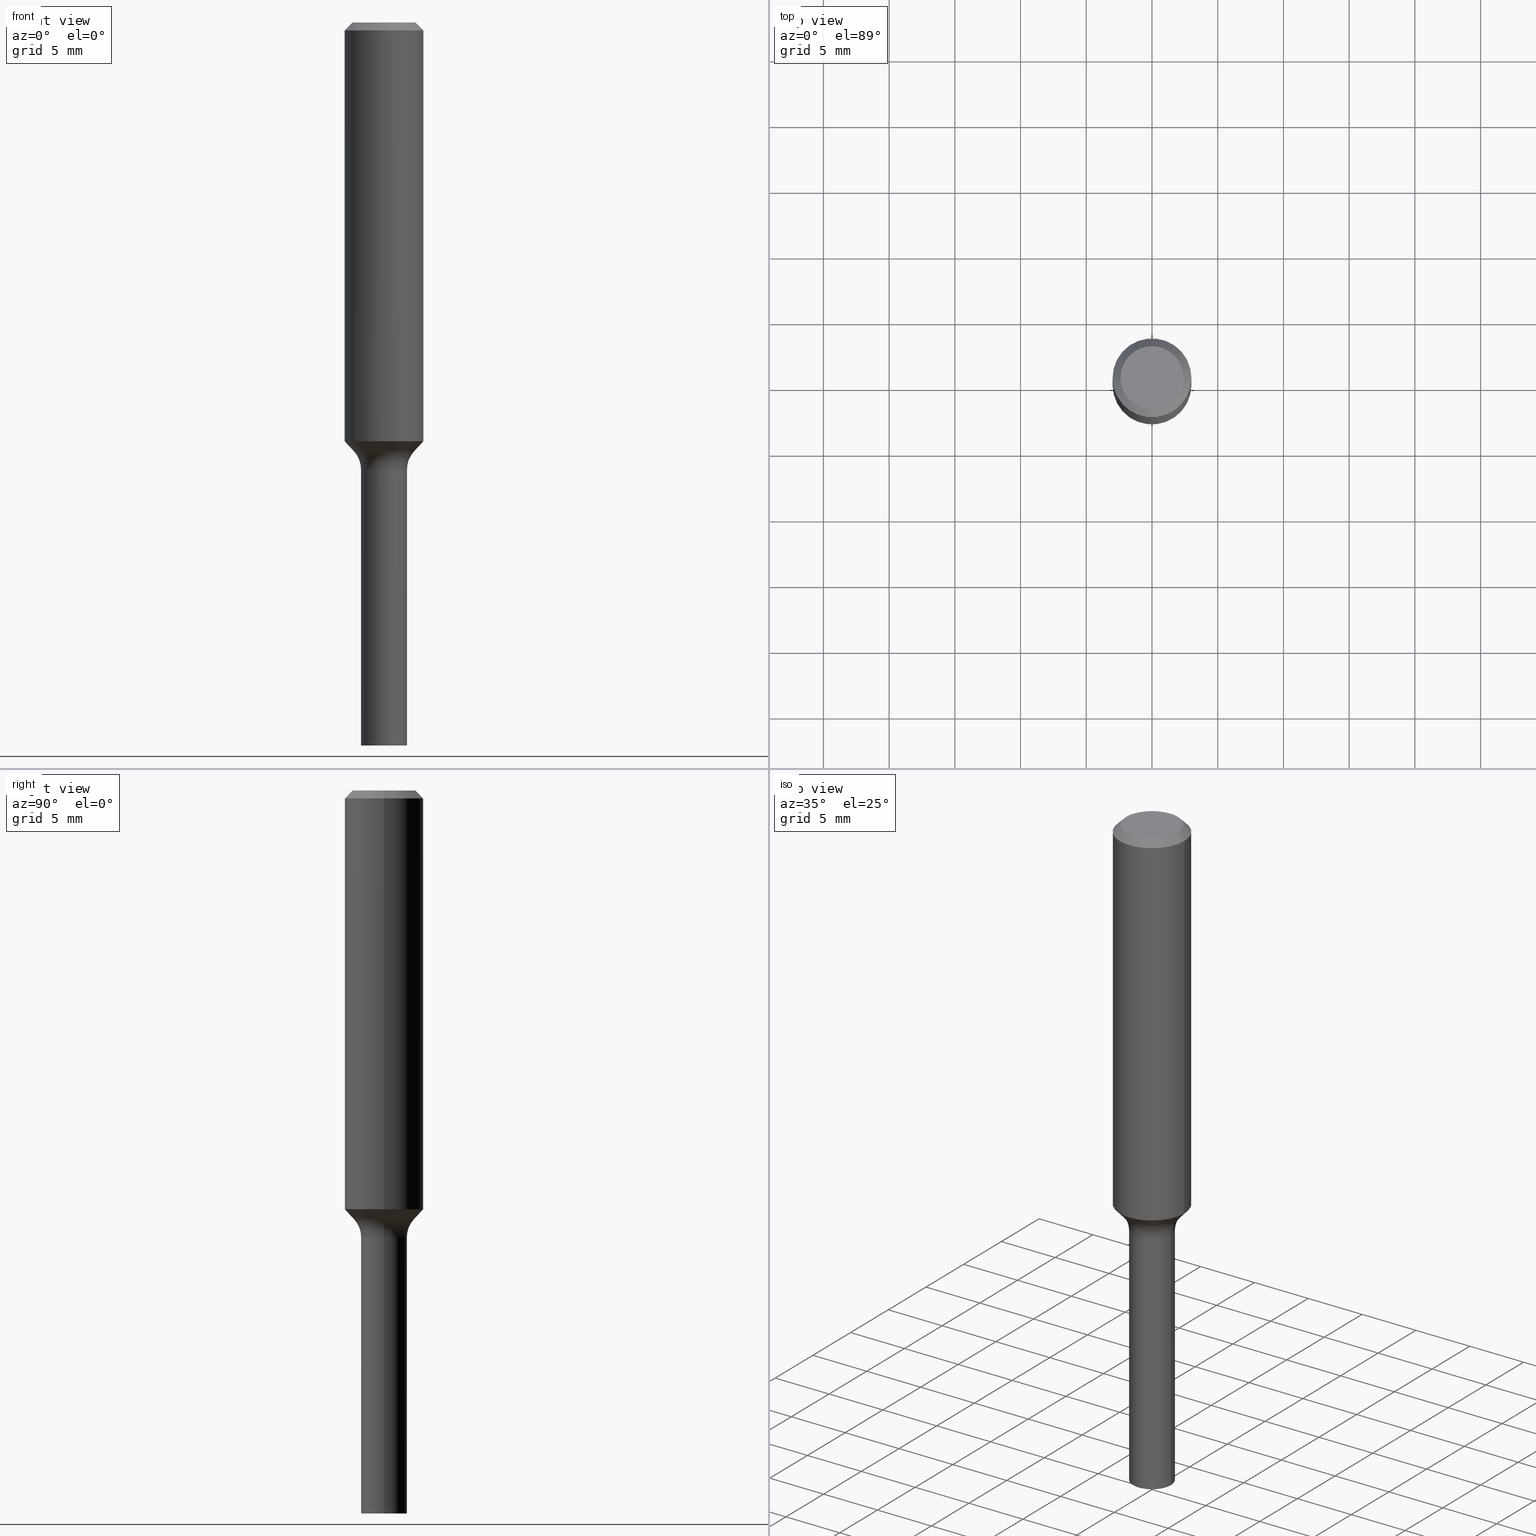
[diagram: canonical four-view strip — front | top / right | iso, engineering-drawing reading convention]
A machine part, canonical four-view strip (front | top / right | iso — engineering-drawing reading convention). The complete STEP part file that produces these views, byte-faithful:
ISO-10303-21;
HEADER;
FILE_DESCRIPTION (( 'STEP AP203' ),
    '1' );
FILE_NAME ('67710.STEP',
    '2025-04-01T15:29:29',
    ( '' ),
    ( '' ),
    'SwSTEP 2.0',
    'SolidWorks 2024',
    '' );
FILE_SCHEMA (( 'CONFIG_CONTROL_DESIGN' ));
ENDSEC;

DATA;
#1 = DIRECTION ( 'NONE',  ( -2.445468806185136597E-29, 3.491481338843145583E-15, 1.000000000000000000 ) ) ;
#2 = VECTOR ( 'NONE', #136, 39.37007874015748143 ) ;
#3 = DIRECTION ( 'NONE',  ( 1.000000000000000000, -6.982962677686265922E-15, 0.000000000000000000 ) ) ;
#4 = CC_DESIGN_APPROVAL ( #383, ( #48 ) ) ;
#5 = DIRECTION ( 'NONE',  ( 0.6819983600624988096, -2.208861293262478564E-15, 0.7313537016191701268 ) ) ;
#6 = EDGE_CURVE ( 'NONE', #184, #417, #226, .T. ) ;
#7 = DIRECTION ( 'NONE',  ( -2.445468806185136597E-29, 3.491481338843145583E-15, 1.000000000000000000 ) ) ;
#8 = DATE_AND_TIME ( #239, #203 ) ;
#9 = DIRECTION ( 'NONE',  ( -2.445468806185136597E-29, 3.491481338843145583E-15, 1.000000000000000000 ) ) ;
#10 = PLANE ( 'NONE',  #185 ) ;
#11 = ORIENTED_EDGE ( 'NONE', *, *, #454, .F. ) ;
#12 = CARTESIAN_POINT ( 'NONE',  ( 0.1181000000000001493, -5.203447587460667215E-15, -1.254126621417589904 ) ) ;
#13 = CARTESIAN_POINT ( 'NONE',  ( 3.273015450198186344E-29, -4.672998623907665346E-15, -1.338399999999999812 ) ) ;
#14 =( NAMED_UNIT ( * ) PLANE_ANGLE_UNIT ( ) SI_UNIT ( $, .RADIAN. ) );
#15 = LINE ( 'NONE', #282, #436 ) ;
#16 = LINE ( 'NONE', #292, #493 ) ;
#17 = EDGE_CURVE ( 'NONE', #376, #433, #430, .T. ) ;
#18 = CIRCLE ( 'NONE', #78, 0.09039170387046631394 ) ;
#19 = CYLINDRICAL_SURFACE ( 'NONE', #340, 0.1181000000000000660 ) ;
#20 = DIRECTION ( 'NONE',  ( -2.445468806185136877E-29, 3.491481338843145188E-15, 1.000000000000000000 ) ) ;
#21 = ORIENTED_EDGE ( 'NONE', *, *, #397, .T. ) ;
#22 = DIRECTION ( 'NONE',  ( -2.445468806185136597E-29, 3.491481338843145583E-15, 1.000000000000000000 ) ) ;
#23 = ORIENTED_EDGE ( 'NONE', *, *, #266, .F. ) ;
#24 = DIRECTION ( 'NONE',  ( -2.445468806185136597E-29, 3.491481338843145583E-15, 1.000000000000000000 ) ) ;
#25 = EDGE_LOOP ( 'NONE', ( #191, #269, #408, #87 ) ) ;
#26 = CIRCLE ( 'NONE', #502, 0.06889999999999996128 ) ;
#27 = APPROVAL_PERSON_ORGANIZATION ( #70, #460, #75 ) ;
#28 = ADVANCED_FACE ( 'NONE', ( #487 ), #326, .T. ) ;
#29 = DIRECTION ( 'NONE',  ( -2.445468806185136597E-29, 3.491481338843145583E-15, 1.000000000000000000 ) ) ;
#30 = ORIENTED_EDGE ( 'NONE', *, *, #120, .F. ) ;
#31 = CC_DESIGN_PERSON_AND_ORGANIZATION_ASSIGNMENT ( #395, #113, ( #231 ) ) ;
#32 = ORIENTED_EDGE ( 'NONE', *, *, #273, .T. ) ;
#33 = SHAPE_DEFINITION_REPRESENTATION ( #119, #58 ) ;
#34 = DIRECTION ( 'NONE',  ( 1.000000000000000000, -6.982962677686267499E-15, 4.875432709231658792E-29 ) ) ;
#35 = EDGE_CURVE ( 'NONE', #100, #104, #236, .T. ) ;
#36 = AXIS2_PLACEMENT_3D ( 'NONE', #461, #497, #468 ) ;
#37 = FACE_OUTER_BOUND ( 'NONE', #365, .T. ) ;
#38 = DIRECTION ( 'NONE',  ( 7.105427357601001859E-15, 1.000000000000000000, -3.491481338843145583E-15 ) ) ;
#39 = CIRCLE ( 'NONE', #101, 0.06890000000000000291 ) ;
#40 = COORDINATED_UNIVERSAL_TIME_OFFSET ( 5, 0, .BEHIND. ) ;
#41 = PERSON_AND_ORGANIZATION ( #166, #393 ) ;
#42 = ORIENTED_EDGE ( 'NONE', *, *, #118, .T. ) ;
#43 = DIRECTION ( 'NONE',  ( -1.000000000000000000, 6.982962677686265922E-15, -4.876176775795935793E-29 ) ) ;
#44 = EDGE_CURVE ( 'NONE', #400, #362, #288, .T. ) ;
#45 = CARTESIAN_POINT ( 'NONE',  ( -0.06889999999999996128, -4.856417707030973435E-15, -1.338399999999999812 ) ) ;
#46 = COORDINATED_UNIVERSAL_TIME_OFFSET ( 5, 0, .BEHIND. ) ;
#47 = DIRECTION ( 'NONE',  ( 1.000000000000000000, -6.982962677686273021E-15, 0.000000000000000000 ) ) ;
#48 = PRODUCT_DEFINITION_FORMATION_WITH_SPECIFIED_SOURCE ( 'ANY', '', #244, .NOT_KNOWN. ) ;
#49 = ORIENTED_EDGE ( 'NONE', *, *, #82, .T. ) ;
#50 = FACE_OUTER_BOUND ( 'NONE', #305, .T. ) ;
#51 = CARTESIAN_POINT ( 'NONE',  ( 3.066927531683072292E-29, -4.378759695225917375E-15, -1.254126621417589904 ) ) ;
#52 = LINE ( 'NONE', #422, #216 ) ;
#53 = DIRECTION ( 'NONE',  ( -2.445468806185136597E-29, 3.491481338843145583E-15, 1.000000000000000000 ) ) ;
#54 = DIRECTION ( 'NONE',  ( 2.438088387897960049E-29, -3.491481338843145188E-15, -1.000000000000000000 ) ) ;
#55 = AXIS2_PLACEMENT_3D ( 'NONE', #391, #233, #276 ) ;
#56 = AXIS2_PLACEMENT_3D ( 'NONE', #483, #321, #255 ) ;
#57 = CARTESIAN_POINT ( 'NONE',  ( -0.06890000000000001679, -4.856417707030972646E-15, -1.723899999999999988 ) ) ;
#58 = ADVANCED_BREP_SHAPE_REPRESENTATION ( '67710', ( #334, #157, #73 ), #480 ) ;
#59 = CARTESIAN_POINT ( 'NONE',  ( 0.1180999999999999966, -9.071566814582237199E-16, -0.02362000000000015129 ) ) ;
#60 = ORIENTED_EDGE ( 'NONE', *, *, #35, .T. ) ;
#61 = DIRECTION ( 'NONE',  ( 1.000000000000000000, -6.982962677686267499E-15, 0.000000000000000000 ) ) ;
#62 = EDGE_LOOP ( 'NONE', ( #336, #341, #387, #265 ) ) ;
#63 = EDGE_CURVE ( 'NONE', #100, #188, #494, .T. ) ;
#64 = EDGE_LOOP ( 'NONE', ( #424, #242, #211, #49 ) ) ;
#65 = CIRCLE ( 'NONE', #224, 0.06890000000000000291 ) ;
#66 = ORIENTED_EDGE ( 'NONE', *, *, #170, .F. ) ;
#67 = CALENDAR_DATE ( 2025, 1, 4 ) ;
#68 = EDGE_CURVE ( 'NONE', #362, #396, #317, .T. ) ;
#69 = EDGE_LOOP ( 'NONE', ( #435, #167, #85, #23 ) ) ;
#70 = PERSON_AND_ORGANIZATION ( #166, #393 ) ;
#71 = CARTESIAN_POINT ( 'NONE',  ( 5.776197320209329284E-31, -8.246878922347561759E-17, -0.02362000000000015129 ) ) ;
#72 = CONICAL_SURFACE ( 'NONE', #360, 0.1180999999999999966, 0.7853981633974460586 ) ;
#73 = AXIS2_PLACEMENT_3D ( 'NONE', #205, #92, #106 ) ;
#74 = ORIENTED_EDGE ( 'NONE', *, *, #411, .F. ) ;
#75 = APPROVAL_ROLE ( '' ) ;
#76 = ADVANCED_FACE ( 'NONE', ( #114 ), #512, .T. ) ;
#77 = APPROVAL ( #79, 'UNSPECIFIED' ) ;
#78 = AXIS2_PLACEMENT_3D ( 'NONE', #293, #22, #61 ) ;
#79 = APPROVAL_STATUS ( 'not_yet_approved' ) ;
#80 = EDGE_LOOP ( 'NONE', ( #30, #343, #297, #507 ) ) ;
#81 = CARTESIAN_POINT ( 'NONE',  ( 0.06890000000000000291, -6.500090808524281979E-15, -1.723899999999999988 ) ) ;
#82 = EDGE_CURVE ( 'NONE', #417, #184, #194, .T. ) ;
#83 = DIRECTION ( 'NONE',  ( 2.438088387897960049E-29, -3.491481338843145188E-15, -1.000000000000000000 ) ) ;
#84 = DIRECTION ( 'NONE',  ( 1.000000000000000000, -6.982962677686265922E-15, 4.876176775795935793E-29 ) ) ;
#85 = ORIENTED_EDGE ( 'NONE', *, *, #420, .F. ) ;
#86 = CARTESIAN_POINT ( 'NONE',  ( 3.772893820736570314E-46, -5.386692455541008845E-32, -1.542810037565835988E-17 ) ) ;
#87 = ORIENTED_EDGE ( 'NONE', *, *, #118, .F. ) ;
#88 = DIRECTION ( 'NONE',  ( 1.000000000000000000, -6.982962677686265922E-15, 0.000000000000000000 ) ) ;
#89 = AXIS2_PLACEMENT_3D ( 'NONE', #432, #29, #300 ) ;
#90 = DIRECTION ( 'NONE',  ( 1.000000000000000000, -6.982962677686273810E-15, 0.000000000000000000 ) ) ;
#91 = CC_DESIGN_APPROVAL ( #460, ( #231 ) ) ;
#92 = DIRECTION ( 'NONE',  ( 0.000000000000000000, 0.000000000000000000, 1.000000000000000000 ) ) ;
#93 = CARTESIAN_POINT ( 'NONE',  ( 0.1180999999999999966, -8.926936027602933910E-16, -0.02362000000000015129 ) ) ;
#94 = LINE ( 'NONE', #210, #141 ) ;
#95 = CC_DESIGN_PERSON_AND_ORGANIZATION_ASSIGNMENT ( #41, #423, ( #48 ) ) ;
#96 = CARTESIAN_POINT ( 'NONE',  ( 0.09039170387046627231, -5.113705754625212970E-15, -1.283840131195000067 ) ) ;
#97 = DIRECTION ( 'NONE',  ( -2.445468806185136597E-29, 3.491481338843145583E-15, 1.000000000000000000 ) ) ;
#98 = CARTESIAN_POINT ( 'NONE',  ( 4.216966409385649156E-29, -6.020710420701119744E-15, -1.724399999999999711 ) ) ;
#99 = FACE_OUTER_BOUND ( 'NONE', #64, .T. ) ;
#100 = VERTEX_POINT ( 'NONE', #278 ) ;
#101 = AXIS2_PLACEMENT_3D ( 'NONE', #328, #335, #503 ) ;
#102 = DIRECTION ( 'NONE',  ( -2.445468806185136597E-29, 3.491481338843145583E-15, 1.000000000000000000 ) ) ;
#103 = ADVANCED_FACE ( 'NONE', ( #445 ), #394, .F. ) ;
#104 = VERTEX_POINT ( 'NONE', #45 ) ;
#105 = EDGE_LOOP ( 'NONE', ( #137, #268, #42, #427 ) ) ;
#106 = DIRECTION ( 'NONE',  ( 1.000000000000000000, 0.000000000000000000, 0.000000000000000000 ) ) ;
#107 = CARTESIAN_POINT ( 'NONE',  ( 4.216966409385649156E-29, -6.020710420701119744E-15, -1.724399999999999711 ) ) ;
#108 = ORIENTED_EDGE ( 'NONE', *, *, #471, .T. ) ;
#109 = AXIS2_PLACEMENT_3D ( 'NONE', #245, #447, #3 ) ;
#110 = ADVANCED_FACE ( 'NONE', ( #37 ), #202, .T. ) ;
#111 = DIRECTION ( 'NONE',  ( -1.000000000000000000, 6.982962677686266711E-15, 0.000000000000000000 ) ) ;
#112 = ORIENTED_EDGE ( 'NONE', *, *, #464, .F. ) ;
#113 = PERSON_AND_ORGANIZATION_ROLE ( 'classification_officer' ) ;
#114 = FACE_OUTER_BOUND ( 'NONE', #69, .T. ) ;
#115 = EDGE_LOOP ( 'NONE', ( #390, #144 ) ) ;
#116 = APPROVAL_STATUS ( 'not_yet_approved' ) ;
#117 = AXIS2_PLACEMENT_3D ( 'NONE', #51, #370, #241 ) ;
#118 = EDGE_CURVE ( 'NONE', #215, #421, #52, .T. ) ;
#119 = PRODUCT_DEFINITION_SHAPE ( 'NONE', 'NONE',  #209 ) ;
#120 = EDGE_CURVE ( 'NONE', #400, #505, #221, .T. ) ;
#121 = ORIENTED_EDGE ( 'NONE', *, *, #197, .F. ) ;
#122 = CIRCLE ( 'NONE', #418, 0.06890000000000000291 ) ;
#123 = DATE_AND_TIME ( #279, #162 ) ;
#124 = CARTESIAN_POINT ( 'NONE',  ( 0.06890000000000000291, -6.501836549193703482E-15, -1.724399999999999711 ) ) ;
#125 = DIRECTION ( 'NONE',  ( -2.445468806185136597E-29, 3.491481338843145583E-15, 1.000000000000000000 ) ) ;
#126 = CARTESIAN_POINT ( 'NONE',  ( 0.06840000000000000246, -6.498345067854860475E-15, -1.724399999999999711 ) ) ;
#127 = ORIENTED_EDGE ( 'NONE', *, *, #420, .T. ) ;
#128 = DIRECTION ( 'NONE',  ( -2.445468806185136597E-29, 3.491481338843145583E-15, 1.000000000000000000 ) ) ;
#129 = DIRECTION ( 'NONE',  ( -2.445468806185136877E-29, 3.491481338843145188E-15, 1.000000000000000000 ) ) ;
#130 = AXIS2_PLACEMENT_3D ( 'NONE', #200, #323, #84 ) ;
#131 = FACE_OUTER_BOUND ( 'NONE', #62, .T. ) ;
#132 = VECTOR ( 'NONE', #477, 39.37007874015748143 ) ;
#133 = CARTESIAN_POINT ( 'NONE',  ( -0.06890000000000007230, -5.531146475762410202E-15, -1.724399999999999711 ) ) ;
#134 = CARTESIAN_POINT ( 'NONE',  ( 0.09447999999999998066, -7.704367267948738690E-16, -3.085620075131172158E-17 ) ) ;
#135 = CARTESIAN_POINT ( 'NONE',  ( 3.139590992966006013E-29, -4.482503860125278864E-15, -1.283840131195000067 ) ) ;
#136 = DIRECTION ( 'NONE',  ( -2.445468806185136877E-29, 3.491481338843145188E-15, 1.000000000000000000 ) ) ;
#137 = ORIENTED_EDGE ( 'NONE', *, *, #156, .F. ) ;
#138 = FACE_OUTER_BOUND ( 'NONE', #25, .T. ) ;
#139 = PERSON_AND_ORGANIZATION ( #166, #393 ) ;
#140 = EDGE_CURVE ( 'NONE', #376, #184, #257, .T. ) ;
#141 = VECTOR ( 'NONE', #252, 39.37007874015748143 ) ;
#142 = APPROVAL_PERSON_ORGANIZATION ( #143, #77, #358 ) ;
#143 = PERSON_AND_ORGANIZATION ( #166, #393 ) ;
#144 = ORIENTED_EDGE ( 'NONE', *, *, #254, .T. ) ;
#145 = ORIENTED_EDGE ( 'NONE', *, *, #399, .T. ) ;
#146 = AXIS2_PLACEMENT_3D ( 'NONE', #485, #164, #270 ) ;
#147 = CIRCLE ( 'NONE', #509, 0.06840000000000000246 ) ;
#148 = CC_DESIGN_PERSON_AND_ORGANIZATION_ASSIGNMENT ( #232, #186, ( #244 ) ) ;
#149 = AXIS2_PLACEMENT_3D ( 'NONE', #243, #83, #405 ) ;
#150 = DIRECTION ( 'NONE',  ( 1.000000000000000000, -6.982962677686267499E-15, 0.000000000000000000 ) ) ;
#151 = ORIENTED_EDGE ( 'NONE', *, *, #187, .T. ) ;
#152 = ADVANCED_FACE ( 'NONE', ( #50 ), #208, .T. ) ;
#153 = CARTESIAN_POINT ( 'NONE',  ( 7.545787641473140628E-46, -1.077338491108201769E-31, -3.085620075131671975E-17 ) ) ;
#154 = PRODUCT_RELATED_PRODUCT_CATEGORY ( 'detail', '', ( #244 ) ) ;
#155 = CALENDAR_DATE ( 2025, 1, 4 ) ;
#156 = EDGE_CURVE ( 'NONE', #482, #469, #322, .T. ) ;
#157 = MANIFOLD_SOLID_BREP ( 'Body-Move/Copy2[2]', #329 ) ;
#158 = DIRECTION ( 'NONE',  ( 1.000000000000000000, -6.982962677686269866E-15, 0.000000000000000000 ) ) ;
#159 =( LENGTH_UNIT ( ) NAMED_UNIT ( * ) SI_UNIT ( $, .METRE. ) );
#160 = CIRCLE ( 'NONE', #36, 0.08000000000000007105 ) ;
#161 = EDGE_LOOP ( 'NONE', ( #145, #470, #193, #66 ) ) ;
#162 = LOCAL_TIME ( 11, 29, 29.00000000000000000, #46 ) ;
#163 = CARTESIAN_POINT ( 'NONE',  ( -0.06890000000000000291, -6.301018110977323253E-15, -1.724399999999999711 ) ) ;
#164 = DIRECTION ( 'NONE',  ( -2.445468806185136597E-29, 3.491481338843145583E-15, 1.000000000000000000 ) ) ;
#165 = CARTESIAN_POINT ( 'NONE',  ( 5.776197320209329284E-31, -8.246878922347561759E-17, -0.02362000000000015129 ) ) ;
#166 = PERSON ( 'UNSPECIFIED', 'UNSPECIFIED', 'UNSPECIFIED', ('UNSPECIFIED'), ('UNSPECIFIED'), ('UNSPECIFIED') ) ;
#167 = ORIENTED_EDGE ( 'NONE', *, *, #178, .T. ) ;
#168 = DIRECTION ( 'NONE',  ( -2.445468806185136597E-29, 3.491481338843145583E-15, 1.000000000000000000 ) ) ;
#169 = DIRECTION ( 'NONE',  ( 1.000000000000000000, -6.982962677686264344E-15, 0.000000000000000000 ) ) ;
#170 = EDGE_CURVE ( 'NONE', #261, #184, #378, .T. ) ;
#171 = DIRECTION ( 'NONE',  ( 2.438088387897960049E-29, -3.491481338843145188E-15, -1.000000000000000000 ) ) ;
#172 = CARTESIAN_POINT ( 'NONE',  ( 0.06890000000000014169, -8.041579819623531161E-15, -2.165399999999999991 ) ) ;
#173 = CIRCLE ( 'NONE', #453, 0.06890000000000014169 ) ;
#174 = CARTESIAN_POINT ( 'NONE',  ( -0.1180999999999999966, -1.391463271292017430E-15, -0.02362000000000015129 ) ) ;
#175 = LINE ( 'NONE', #331, #361 ) ;
#176 = FACE_OUTER_BOUND ( 'NONE', #222, .T. ) ;
#177 = ORIENTED_EDGE ( 'NONE', *, *, #44, .F. ) ;
#178 = EDGE_CURVE ( 'NONE', #505, #104, #15, .T. ) ;
#179 = DIRECTION ( 'NONE',  ( 1.000000000000000000, -6.982962677686267499E-15, 0.000000000000000000 ) ) ;
#180 = ORIENTED_EDGE ( 'NONE', *, *, #120, .T. ) ;
#181 = CC_DESIGN_PERSON_AND_ORGANIZATION_ASSIGNMENT ( #139, #302, ( #48 ) ) ;
#182 = DIRECTION ( 'NONE',  ( 1.000000000000000000, -6.982962677686266711E-15, 4.876176775795936353E-29 ) ) ;
#183 = AXIS2_PLACEMENT_3D ( 'NONE', #406, #250, #444 ) ;
#184 = VERTEX_POINT ( 'NONE', #59 ) ;
#185 = AXIS2_PLACEMENT_3D ( 'NONE', #86, #171, #285 ) ;
#186 = PERSON_AND_ORGANIZATION_ROLE ( 'design_owner' ) ;
#187 = EDGE_CURVE ( 'NONE', #188, #100, #18, .T. ) ;
#188 = VERTEX_POINT ( 'NONE', #96 ) ;
#189 = EDGE_LOOP ( 'NONE', ( #294, #229, #308, #281 ) ) ;
#190 = MECHANICAL_CONTEXT ( 'NONE', #198, 'mechanical' ) ;
#191 = ORIENTED_EDGE ( 'NONE', *, *, #290, .T. ) ;
#192 = DATE_TIME_ROLE ( 'classification_date' ) ;
#193 = ORIENTED_EDGE ( 'NONE', *, *, #6, .F. ) ;
#194 = CIRCLE ( 'NONE', #374, 0.1180999999999999966 ) ;
#195 = AXIS2_PLACEMENT_3D ( 'NONE', #452, #128, #47 ) ;
#196 = AXIS2_PLACEMENT_3D ( 'NONE', #349, #1, #350 ) ;
#197 = EDGE_CURVE ( 'NONE', #188, #333, #160, .T. ) ;
#198 = APPLICATION_CONTEXT ( 'configuration controlled 3d designs of mechanical parts and assemblies' ) ;
#199 = DIRECTION ( 'NONE',  ( -2.445468806185136597E-29, 3.491481338843145583E-15, 1.000000000000000000 ) ) ;
#200 = CARTESIAN_POINT ( 'NONE',  ( 4.216966409385649156E-29, -6.020710420701119744E-15, -1.724399999999999711 ) ) ;
#201 = CARTESIAN_POINT ( 'NONE',  ( 0.000000000000000000, 0.000000000000000000, 0.000000000000000000 ) ) ;
#202 = CYLINDRICAL_SURFACE ( 'NONE', #510, 0.06889999999999997515 ) ;
#203 = LOCAL_TIME ( 11, 29, 29.00000000000000000, #446 ) ;
#204 = CARTESIAN_POINT ( 'NONE',  ( 3.066927531683072292E-29, -4.378759695225917375E-15, -1.254126621417589904 ) ) ;
#205 = CARTESIAN_POINT ( 'NONE',  ( 0.000000000000000000, 0.000000000000000000, 0.000000000000000000 ) ) ;
#206 = DIRECTION ( 'NONE',  ( 1.000000000000000000, -6.982962677686269866E-15, 0.000000000000000000 ) ) ;
#207 = CARTESIAN_POINT ( 'NONE',  ( 3.273015450198186344E-29, -4.672998623907665346E-15, -1.338399999999999812 ) ) ;
#208 = CYLINDRICAL_SURFACE ( 'NONE', #247, 0.1181000000000000660 ) ;
#209 = PRODUCT_DEFINITION ( 'UNKNOWN', '', #48, #459 ) ;
#210 = CARTESIAN_POINT ( 'NONE',  ( -0.09039170387046631394, -3.840232174543898854E-15, -1.283840131195000067 ) ) ;
#211 = ORIENTED_EDGE ( 'NONE', *, *, #439, .T. ) ;
#212 = DIRECTION ( 'NONE',  ( 1.000000000000000000, -6.982962677686267499E-15, 4.876176775795935793E-29 ) ) ;
#213 = CIRCLE ( 'NONE', #109, 0.06890000000000000291 ) ;
#214 = DIRECTION ( 'NONE',  ( 1.000000000000000000, -6.982962677686264344E-15, 4.883557194083112340E-29 ) ) ;
#215 = VERTEX_POINT ( 'NONE', #172 ) ;
#216 = VECTOR ( 'NONE', #291, 39.37007874015748143 ) ;
#217 =( CONVERSION_BASED_UNIT ( 'INCH', #325 ) LENGTH_UNIT ( ) NAMED_UNIT ( #351 ) );
#218 = ORIENTED_EDGE ( 'NONE', *, *, #356, .T. ) ;
#219 = VERTEX_POINT ( 'NONE', #490 ) ;
#220 = ADVANCED_FACE ( 'NONE', ( #138 ), #463, .T. ) ;
#221 = LINE ( 'NONE', #373, #348 ) ;
#222 = EDGE_LOOP ( 'NONE', ( #514, #60, #32, #121 ) ) ;
#223 = DIRECTION ( 'NONE',  ( -2.445468806185136597E-29, 3.491481338843145583E-15, 1.000000000000000000 ) ) ;
#224 = AXIS2_PLACEMENT_3D ( 'NONE', #504, #223, #386 ) ;
#225 = ORIENTED_EDGE ( 'NONE', *, *, #35, .F. ) ;
#226 = CIRCLE ( 'NONE', #55, 0.1180999999999999966 ) ;
#227 = DATE_AND_TIME ( #67, #467 ) ;
#228 = COORDINATED_UNIVERSAL_TIME_OFFSET ( 5, 0, .BEHIND. ) ;
#229 = ORIENTED_EDGE ( 'NONE', *, *, #63, .T. ) ;
#230 = DIRECTION ( 'NONE',  ( 1.000000000000000000, -6.982962677686266711E-15, 0.000000000000000000 ) ) ;
#231 = SECURITY_CLASSIFICATION ( '', '', #508 ) ;
#232 = PERSON_AND_ORGANIZATION ( #166, #393 ) ;
#233 = DIRECTION ( 'NONE',  ( -2.445468806185136597E-29, 3.491481338843145583E-15, 1.000000000000000000 ) ) ;
#234 = ADVANCED_FACE ( 'NONE', ( #176 ), #442, .F. ) ;
#235 = APPROVAL_ROLE ( '' ) ;
#236 = CIRCLE ( 'NONE', #238, 0.08000000000000007105 ) ;
#237 = CONICAL_SURFACE ( 'NONE', #286, 0.09039170387046631394, 0.7504915783575621946 ) ;
#238 = AXIS2_PLACEMENT_3D ( 'NONE', #511, #38, #347 ) ;
#239 = CALENDAR_DATE ( 2025, 1, 4 ) ;
#240 = ORIENTED_EDGE ( 'NONE', *, *, #516, .F. ) ;
#241 = DIRECTION ( 'NONE',  ( 1.000000000000000000, -6.982962677686264344E-15, 0.000000000000000000 ) ) ;
#242 = ORIENTED_EDGE ( 'NONE', *, *, #339, .F. ) ;
#243 = CARTESIAN_POINT ( 'NONE',  ( 4.216966409385649156E-29, -6.020710420701119744E-15, -1.724399999999999711 ) ) ;
#244 = PRODUCT ( '67710', '67710', '', ( #190 ) ) ;
#245 = CARTESIAN_POINT ( 'NONE',  ( 4.215743674982556354E-29, -6.018964680031698240E-15, -1.723899999999999988 ) ) ;
#246 = ADVANCED_FACE ( 'NONE', ( #248 ), #237, .T. ) ;
#247 = AXIS2_PLACEMENT_3D ( 'NONE', #414, #409, #182 ) ;
#248 = FACE_OUTER_BOUND ( 'NONE', #189, .T. ) ;
#249 = LOCAL_TIME ( 11, 29, 29.00000000000000000, #40 ) ;
#250 = DIRECTION ( 'NONE',  ( -2.445468806185136597E-29, 3.491481338843145583E-15, 1.000000000000000000 ) ) ;
#251 = LINE ( 'NONE', #500, #484 ) ;
#252 = DIRECTION ( 'NONE',  ( -0.6819983600624988096, 7.399397606724288154E-15, 0.7313537016191701268 ) ) ;
#253 = DIRECTION ( 'NONE',  ( 1.000000000000000000, -6.982962677686273021E-15, 0.000000000000000000 ) ) ;
#254 = EDGE_CURVE ( 'NONE', #469, #421, #39, .T. ) ;
#255 = DIRECTION ( 'NONE',  ( 1.000000000000000000, -6.982962677686265922E-15, 0.000000000000000000 ) ) ;
#256 = EDGE_LOOP ( 'NONE', ( #151, #218, #301, #240 ) ) ;
#257 = LINE ( 'NONE', #93, #398 ) ;
#258 = VECTOR ( 'NONE', #419, 39.37007874015748143 ) ;
#259 = DIRECTION ( 'NONE',  ( 2.445468806185136597E-29, -3.491481338843145583E-15, -1.000000000000000000 ) ) ;
#260 = CC_DESIGN_DATE_AND_TIME_ASSIGNMENT ( #227, #192, ( #231 ) ) ;
#261 = VERTEX_POINT ( 'NONE', #12 ) ;
#262 = CARTESIAN_POINT ( 'NONE',  ( 0.000000000000000000, 0.000000000000000000, 0.000000000000000000 ) ) ;
#263 = EDGE_LOOP ( 'NONE', ( #112, #177 ) ) ;
#264 = CALENDAR_DATE ( 2025, 1, 4 ) ;
#265 = ORIENTED_EDGE ( 'NONE', *, *, #439, .F. ) ;
#266 = EDGE_CURVE ( 'NONE', #396, #333, #251, .T. ) ;
#267 = AXIS2_PLACEMENT_3D ( 'NONE', #415, #54, #43 ) ;
#268 = ORIENTED_EDGE ( 'NONE', *, *, #411, .T. ) ;
#269 = ORIENTED_EDGE ( 'NONE', *, *, #156, .T. ) ;
#270 = DIRECTION ( 'NONE',  ( 1.000000000000000000, -6.982962677686267499E-15, 4.876176775795935793E-29 ) ) ;
#271 = CARTESIAN_POINT ( 'NONE',  ( 3.139590992966006013E-29, -4.482503860125278864E-15, -1.283840131195000067 ) ) ;
#272 = CONICAL_SURFACE ( 'NONE', #392, 0.06840000000000000246, 0.7853981633975591903 ) ;
#273 = EDGE_CURVE ( 'NONE', #104, #333, #26, .T. ) ;
#274 = DATE_AND_TIME ( #155, #249 ) ;
#275 = AXIS2_PLACEMENT_3D ( 'NONE', #495, #53, #332 ) ;
#276 = DIRECTION ( 'NONE',  ( 1.000000000000000000, -6.982962677686266711E-15, 0.000000000000000000 ) ) ;
#277 = PLANE ( 'NONE',  #130 ) ;
#278 = CARTESIAN_POINT ( 'NONE',  ( -0.09039170387046627231, -3.840232174543898854E-15, -1.283840131195000067 ) ) ;
#279 = CALENDAR_DATE ( 2025, 1, 4 ) ;
#280 = FACE_OUTER_BOUND ( 'NONE', #465, .T. ) ;
#281 = ORIENTED_EDGE ( 'NONE', *, *, #397, .F. ) ;
#282 = CARTESIAN_POINT ( 'NONE',  ( -0.06889999999999997515, 4.895639449387088515E-16, -3.389146277185628616E-30 ) ) ;
#283 = DATE_TIME_ROLE ( 'creation_date' ) ;
#284 = FACE_OUTER_BOUND ( 'NONE', #263, .T. ) ;
#285 = DIRECTION ( 'NONE',  ( -1.000000000000000000, 6.982962677686265922E-15, -4.876176775795935793E-29 ) ) ;
#286 = AXIS2_PLACEMENT_3D ( 'NONE', #135, #337, #179 ) ;
#287 = DIRECTION ( 'NONE',  ( -2.445468806185136597E-29, 3.491481338843145583E-15, 1.000000000000000000 ) ) ;
#288 = CIRCLE ( 'NONE', #196, 0.06840000000000000246 ) ;
#289 = DIRECTION ( 'NONE',  ( -2.445468806185136597E-29, 3.491481338843145583E-15, 1.000000000000000000 ) ) ;
#290 = EDGE_CURVE ( 'NONE', #215, #482, #173, .T. ) ;
#291 = DIRECTION ( 'NONE',  ( -2.445468806185136877E-29, 3.491481338843145188E-15, 1.000000000000000000 ) ) ;
#292 = CARTESIAN_POINT ( 'NONE',  ( -0.1180999999999999966, 7.422191030112725094E-16, -0.02362000000000015129 ) ) ;
#293 = CARTESIAN_POINT ( 'NONE',  ( 3.139590992966006013E-29, -4.482503860125278864E-15, -1.283840131195000067 ) ) ;
#294 = ORIENTED_EDGE ( 'NONE', *, *, #356, .F. ) ;
#295 = CARTESIAN_POINT ( 'NONE',  ( 5.295418152913294345E-29, -7.560453691130947423E-15, -2.165399999999999991 ) ) ;
#296 = CC_DESIGN_SECURITY_CLASSIFICATION ( #231, ( #48 ) ) ;
#297 = ORIENTED_EDGE ( 'NONE', *, *, #68, .T. ) ;
#298 = EDGE_CURVE ( 'NONE', #219, #417, #457, .T. ) ;
#299 = ORIENTED_EDGE ( 'NONE', *, *, #68, .F. ) ;
#300 = DIRECTION ( 'NONE',  ( 1.000000000000000000, -6.982962677686267499E-15, 4.875432709231658792E-29 ) ) ;
#301 = ORIENTED_EDGE ( 'NONE', *, *, #399, .F. ) ;
#302 = PERSON_AND_ORGANIZATION_ROLE ( 'design_supplier' ) ;
#303 = APPROVAL_DATE_TIME ( #425, #460 ) ;
#304 = AXIS2_PLACEMENT_3D ( 'NONE', #426, #259, #111 ) ;
#305 = EDGE_LOOP ( 'NONE', ( #438, #21, #448, #345 ) ) ;
#306 = ADVANCED_FACE ( 'NONE', ( #99 ), #327, .T. ) ;
#307 = CARTESIAN_POINT ( 'NONE',  ( 0.06840000000000000246, -6.498345067854860475E-15, -1.724399999999999711 ) ) ;
#308 = ORIENTED_EDGE ( 'NONE', *, *, #516, .T. ) ;
#309 = DIRECTION ( 'NONE',  ( 1.000000000000000000, -6.982962677686265922E-15, 0.000000000000000000 ) ) ;
#310 = CARTESIAN_POINT ( 'NONE',  ( 3.139590992966006013E-29, -4.482503860125278864E-15, -1.283840131195000067 ) ) ;
#311 = AXIS2_PLACEMENT_3D ( 'NONE', #13, #330, #214 ) ;
#312 = LOCAL_TIME ( 11, 29, 29.00000000000000000, #228 ) ;
#313 = FACE_OUTER_BOUND ( 'NONE', #80, .T. ) ;
#314 = CIRCLE ( 'NONE', #89, 0.09447999999999998066 ) ;
#315 =( NAMED_UNIT ( * ) SI_UNIT ( $, .STERADIAN. ) SOLID_ANGLE_UNIT ( ) );
#316 = EDGE_CURVE ( 'NONE', #421, #469, #65, .T. ) ;
#317 = LINE ( 'NONE', #307, #132 ) ;
#318 = CARTESIAN_POINT ( 'NONE',  ( 4.216966409385649156E-29, -6.020710420701119744E-15, -1.724399999999999711 ) ) ;
#319 = ORIENTED_EDGE ( 'NONE', *, *, #273, .F. ) ;
#320 = APPROVAL_DATE_TIME ( #123, #77 ) ;
#321 = DIRECTION ( 'NONE',  ( -2.445468806185136597E-29, 3.491481338843145583E-15, 1.000000000000000000 ) ) ;
#322 = LINE ( 'NONE', #133, #466 ) ;
#323 = DIRECTION ( 'NONE',  ( -2.438088387897960049E-29, 3.491481338843145188E-15, 1.000000000000000000 ) ) ;
#324 = UNCERTAINTY_MEASURE_WITH_UNIT (LENGTH_MEASURE( 1.000000000000000082E-05 ), #217, 'distance_accuracy_value', 'NONE');
#325 = LENGTH_MEASURE_WITH_UNIT ( LENGTH_MEASURE( 0.02539999999999999897 ), #159 );
#326 = CONICAL_SURFACE ( 'NONE', #475, 0.09039170387046631394, 0.7504915783575621946 ) ;
#327 = CONICAL_SURFACE ( 'NONE', #304, 0.1180999999999999966, 0.7853981633974460586 ) ;
#328 = CARTESIAN_POINT ( 'NONE',  ( 4.216966409385649156E-29, -6.020710420701119744E-15, -1.724399999999999711 ) ) ;
#329 = CLOSED_SHELL ( 'NONE', ( #346, #367, #489, #28, #234, #76, #110, #352, #246, #152, #306, #506, #380, #389 ) ) ;
#330 = DIRECTION ( 'NONE',  ( -2.445468806185136597E-29, 3.491481338843145583E-15, 1.000000000000000000 ) ) ;
#331 = CARTESIAN_POINT ( 'NONE',  ( 0.09039170387046631394, -5.113705754625213759E-15, -1.283840131195000067 ) ) ;
#332 = DIRECTION ( 'NONE',  ( 1.000000000000000000, -6.982962677686264344E-15, 4.883557194083112340E-29 ) ) ;
#333 = VERTEX_POINT ( 'NONE', #388 ) ;
#334 = MANIFOLD_SOLID_BREP ( 'Body-Move/Copy2[1]', #456 ) ;
#335 = DIRECTION ( 'NONE',  ( -2.445468806185136597E-29, 3.491481338843145583E-15, 1.000000000000000000 ) ) ;
#336 = ORIENTED_EDGE ( 'NONE', *, *, #17, .F. ) ;
#337 = DIRECTION ( 'NONE',  ( -2.445468806185136597E-29, 3.491481338843145583E-15, 1.000000000000000000 ) ) ;
#338 = CIRCLE ( 'NONE', #117, 0.1181000000000001493 ) ;
#339 = EDGE_CURVE ( 'NONE', #433, #376, #314, .T. ) ;
#340 = AXIS2_PLACEMENT_3D ( 'NONE', #201, #449, #416 ) ;
#341 = ORIENTED_EDGE ( 'NONE', *, *, #140, .T. ) ;
#342 = APPLICATION_PROTOCOL_DEFINITION ( 'international standard', 'config_control_design', 1994, #344 ) ;
#343 = ORIENTED_EDGE ( 'NONE', *, *, #44, .T. ) ;
#344 = APPLICATION_CONTEXT ( 'configuration controlled 3d designs of mechanical parts and assemblies' ) ;
#345 = ORIENTED_EDGE ( 'NONE', *, *, #82, .F. ) ;
#346 = ADVANCED_FACE ( 'NONE', ( #472 ), #272, .T. ) ;
#347 = DIRECTION ( 'NONE',  ( -1.000000000000000000, 7.105427357601005014E-15, 0.000000000000000000 ) ) ;
#348 = VECTOR ( 'NONE', #366, 39.37007874015748143 ) ;
#349 = CARTESIAN_POINT ( 'NONE',  ( 4.216966409385649156E-29, -6.020710420701119744E-15, -1.724399999999999711 ) ) ;
#350 = DIRECTION ( 'NONE',  ( 1.000000000000000000, -6.982962677686273810E-15, 0.000000000000000000 ) ) ;
#351 = DIMENSIONAL_EXPONENTS ( 1.000000000000000000, 0.000000000000000000, 0.000000000000000000, 0.000000000000000000, 0.000000000000000000, 0.000000000000000000, 0.000000000000000000 ) ;
#352 = ADVANCED_FACE ( 'NONE', ( #280 ), #515, .F. ) ;
#353 = AXIS2_PLACEMENT_3D ( 'NONE', #204, #289, #169 ) ;
#354 = CARTESIAN_POINT ( 'NONE',  ( -0.06890000000000012781, -6.301018110977322464E-15, -2.165399999999999991 ) ) ;
#355 = AXIS2_PLACEMENT_3D ( 'NONE', #310, #7, #150 ) ;
#356 = EDGE_CURVE ( 'NONE', #100, #219, #94, .T. ) ;
#357 = DIRECTION ( 'NONE',  ( 1.000000000000000000, -6.982962677686267499E-15, 0.000000000000000000 ) ) ;
#358 = APPROVAL_ROLE ( '' ) ;
#359 = FACE_OUTER_BOUND ( 'NONE', #404, .T. ) ;
#360 = AXIS2_PLACEMENT_3D ( 'NONE', #165, #368, #496 ) ;
#361 = VECTOR ( 'NONE', #5, 39.37007874015748143 ) ;
#362 = VERTEX_POINT ( 'NONE', #126 ) ;
#363 = DIRECTION ( 'NONE',  ( -2.445468806185136597E-29, 3.491481338843145583E-15, 1.000000000000000000 ) ) ;
#364 = DIRECTION ( 'NONE',  ( -2.445468806185136597E-29, 3.491481338843145583E-15, 1.000000000000000000 ) ) ;
#365 = EDGE_LOOP ( 'NONE', ( #473, #108, #377, #319 ) ) ;
#366 = DIRECTION ( 'NONE',  ( -0.7071067811866259545, 7.493145998870638150E-15, 0.7071067811864690800 ) ) ;
#367 = ADVANCED_FACE ( 'NONE', ( #131 ), #72, .T. ) ;
#368 = DIRECTION ( 'NONE',  ( 2.445468806185136597E-29, -3.491481338843145583E-15, -1.000000000000000000 ) ) ;
#369 = CARTESIAN_POINT ( 'NONE',  ( 0.1181000000000000660, -8.246878922347485584E-16, 5.758764772215003944E-30 ) ) ;
#370 = DIRECTION ( 'NONE',  ( -2.445468806185136597E-29, 3.491481338843145583E-15, 1.000000000000000000 ) ) ;
#371 = CC_DESIGN_PERSON_AND_ORGANIZATION_ASSIGNMENT ( #401, #481, ( #209 ) ) ;
#372 = CIRCLE ( 'NONE', #56, 0.06890000000000014169 ) ;
#373 = CARTESIAN_POINT ( 'NONE',  ( -0.06840000000000000246, -5.534699189441211101E-15, -1.724399999999999711 ) ) ;
#374 = AXIS2_PLACEMENT_3D ( 'NONE', #71, #125, #230 ) ;
#375 = FACE_OUTER_BOUND ( 'NONE', #105, .T. ) ;
#376 = VERTEX_POINT ( 'NONE', #134 ) ;
#377 = ORIENTED_EDGE ( 'NONE', *, *, #266, .T. ) ;
#378 = LINE ( 'NONE', #369, #258 ) ;
#379 = EDGE_LOOP ( 'NONE', ( #431, #443 ) ) ;
#380 = ADVANCED_FACE ( 'NONE', ( #284 ), #277, .F. ) ;
#381 = DIRECTION ( 'NONE',  ( 0.7071067811865459074, -7.319954787623249734E-15, -0.7071067811865491270 ) ) ;
#382 = ORIENTED_EDGE ( 'NONE', *, *, #290, .F. ) ;
#383 = APPROVAL ( #518, 'UNSPECIFIED' ) ;
#384 = AXIS2_PLACEMENT_3D ( 'NONE', #98, #24, #253 ) ;
#385 = APPROVAL_PERSON_ORGANIZATION ( #451, #383, #235 ) ;
#386 = DIRECTION ( 'NONE',  ( 1.000000000000000000, -6.982962677686265922E-15, 0.000000000000000000 ) ) ;
#387 = ORIENTED_EDGE ( 'NONE', *, *, #6, .T. ) ;
#388 = CARTESIAN_POINT ( 'NONE',  ( 0.06889999999999996128, -5.154124752400249085E-15, -1.338399999999999812 ) ) ;
#389 = ADVANCED_FACE ( 'NONE', ( #313 ), #479, .T. ) ;
#390 = ORIENTED_EDGE ( 'NONE', *, *, #316, .T. ) ;
#391 = CARTESIAN_POINT ( 'NONE',  ( 5.776197320209329284E-31, -8.246878922347561759E-17, -0.02362000000000015129 ) ) ;
#392 = AXIS2_PLACEMENT_3D ( 'NONE', #107, #410, #413 ) ;
#393 = ORGANIZATION ( 'UNSPECIFIED', 'UNSPECIFIED', '' ) ;
#394 = PLANE ( 'NONE',  #149 ) ;
#395 = PERSON_AND_ORGANIZATION ( #166, #393 ) ;
#396 = VERTEX_POINT ( 'NONE', #81 ) ;
#397 = EDGE_CURVE ( 'NONE', #219, #261, #338, .T. ) ;
#398 = VECTOR ( 'NONE', #381, 39.37007874015748143 ) ;
#399 = EDGE_CURVE ( 'NONE', #261, #219, #474, .T. ) ;
#400 = VERTEX_POINT ( 'NONE', #488 ) ;
#401 = PERSON_AND_ORGANIZATION ( #166, #393 ) ;
#402 = PLANE ( 'NONE',  #267 ) ;
#403 = FACE_OUTER_BOUND ( 'NONE', #161, .T. ) ;
#404 = EDGE_LOOP ( 'NONE', ( #382, #74 ) ) ;
#405 = DIRECTION ( 'NONE',  ( -1.000000000000000000, 6.982962677686265922E-15, -4.876176775795935793E-29 ) ) ;
#406 = CARTESIAN_POINT ( 'NONE',  ( 4.216966409385649156E-29, -6.020710420701119744E-15, -1.724399999999999711 ) ) ;
#407 = CIRCLE ( 'NONE', #429, 0.06889999999999996128 ) ;
#408 = ORIENTED_EDGE ( 'NONE', *, *, #316, .F. ) ;
#409 = DIRECTION ( 'NONE',  ( -2.445468806185136597E-29, 3.491481338843145583E-15, 1.000000000000000000 ) ) ;
#410 = DIRECTION ( 'NONE',  ( -2.445468806185136597E-29, 3.491481338843145583E-15, 1.000000000000000000 ) ) ;
#411 = EDGE_CURVE ( 'NONE', #482, #215, #372, .T. ) ;
#412 = DIRECTION ( 'NONE',  ( -2.445468806185136877E-29, 3.491481338843145188E-15, 1.000000000000000000 ) ) ;
#413 = DIRECTION ( 'NONE',  ( 1.000000000000000000, -6.982962677686273810E-15, 0.000000000000000000 ) ) ;
#414 = CARTESIAN_POINT ( 'NONE',  ( 0.000000000000000000, 0.000000000000000000, 0.000000000000000000 ) ) ;
#415 = CARTESIAN_POINT ( 'NONE',  ( 5.295418152913294345E-29, -7.560453691130947423E-15, -2.165399999999999991 ) ) ;
#416 = DIRECTION ( 'NONE',  ( 1.000000000000000000, -6.982962677686266711E-15, 4.876176775795936353E-29 ) ) ;
#417 = VERTEX_POINT ( 'NONE', #174 ) ;
#418 = AXIS2_PLACEMENT_3D ( 'NONE', #486, #364, #309 ) ;
#419 = DIRECTION ( 'NONE',  ( -2.445468806185136877E-29, 3.491481338843145188E-15, 1.000000000000000000 ) ) ;
#420 = EDGE_CURVE ( 'NONE', #333, #104, #407, .T. ) ;
#421 = VERTEX_POINT ( 'NONE', #124 ) ;
#422 = CARTESIAN_POINT ( 'NONE',  ( 0.06890000000000007230, -6.501836549193704271E-15, -1.724399999999999711 ) ) ;
#423 = PERSON_AND_ORGANIZATION_ROLE ( 'creator' ) ;
#424 = ORIENTED_EDGE ( 'NONE', *, *, #140, .F. ) ;
#425 = DATE_AND_TIME ( #264, #312 ) ;
#426 = CARTESIAN_POINT ( 'NONE',  ( 5.776197320209329284E-31, -8.246878922347561759E-17, -0.02362000000000015129 ) ) ;
#427 = ORIENTED_EDGE ( 'NONE', *, *, #254, .F. ) ;
#428 = ADVANCED_FACE ( 'NONE', ( #375 ), #458, .T. ) ;
#429 = AXIS2_PLACEMENT_3D ( 'NONE', #207, #97, #158 ) ;
#430 = CIRCLE ( 'NONE', #517, 0.09447999999999998066 ) ;
#431 = ORIENTED_EDGE ( 'NONE', *, *, #339, .T. ) ;
#432 = CARTESIAN_POINT ( 'NONE',  ( 7.545787641473140628E-46, -1.077338491108201769E-31, -3.085620075131671975E-17 ) ) ;
#433 = VERTEX_POINT ( 'NONE', #491 ) ;
#434 = COORDINATED_UNIVERSAL_TIME_OFFSET ( 5, 0, .BEHIND. ) ;
#435 = ORIENTED_EDGE ( 'NONE', *, *, #454, .T. ) ;
#436 = VECTOR ( 'NONE', #412, 39.37007874015748143 ) ;
#437 = CC_DESIGN_APPROVAL ( #77, ( #209 ) ) ;
#438 = ORIENTED_EDGE ( 'NONE', *, *, #298, .F. ) ;
#439 = EDGE_CURVE ( 'NONE', #433, #417, #16, .T. ) ;
#440 = ADVANCED_FACE ( 'NONE', ( #359 ), #402, .T. ) ;
#441 = APPROVAL_DATE_TIME ( #274, #383 ) ;
#442 = TOROIDAL_SURFACE ( 'NONE', #275, 0.1488999999999999768, 0.08000000000000007105 ) ;
#443 = ORIENTED_EDGE ( 'NONE', *, *, #17, .T. ) ;
#444 = DIRECTION ( 'NONE',  ( 1.000000000000000000, -6.982962677686273810E-15, 0.000000000000000000 ) ) ;
#445 = FACE_OUTER_BOUND ( 'NONE', #115, .T. ) ;
#446 = COORDINATED_UNIVERSAL_TIME_OFFSET ( 5, 0, .BEHIND. ) ;
#447 = DIRECTION ( 'NONE',  ( -2.445468806185136597E-29, 3.491481338843145583E-15, 1.000000000000000000 ) ) ;
#448 = ORIENTED_EDGE ( 'NONE', *, *, #170, .T. ) ;
#449 = DIRECTION ( 'NONE',  ( -2.445468806185136597E-29, 3.491481338843145583E-15, 1.000000000000000000 ) ) ;
#450 = CARTESIAN_POINT ( 'NONE',  ( 3.273015450198186344E-29, -4.672998623907665346E-15, -1.338399999999999812 ) ) ;
#451 = PERSON_AND_ORGANIZATION ( #166, #393 ) ;
#452 = CARTESIAN_POINT ( 'NONE',  ( 4.216966409385649156E-29, -6.020710420701119744E-15, -1.724399999999999711 ) ) ;
#453 = AXIS2_PLACEMENT_3D ( 'NONE', #295, #102, #88 ) ;
#454 = EDGE_CURVE ( 'NONE', #396, #505, #213, .T. ) ;
#455 = FACE_OUTER_BOUND ( 'NONE', #379, .T. ) ;
#456 = CLOSED_SHELL ( 'NONE', ( #220, #440, #428, #103 ) ) ;
#457 = LINE ( 'NONE', #498, #2 ) ;
#458 = CYLINDRICAL_SURFACE ( 'NONE', #195, 0.06890000000000007230 ) ;
#459 = DESIGN_CONTEXT ( 'detailed design', #344, 'design' ) ;
#460 = APPROVAL ( #116, 'UNSPECIFIED' ) ;
#461 = CARTESIAN_POINT ( 'NONE',  ( 0.1488999999999999768, -5.712761766615149948E-15, -1.338399999999999812 ) ) ;
#462 = DIRECTION ( 'NONE',  ( -0.7071067811865459074, 2.468850131082240100E-15, -0.7071067811865491270 ) ) ;
#463 = CYLINDRICAL_SURFACE ( 'NONE', #384, 0.06890000000000007230 ) ;
#464 = EDGE_CURVE ( 'NONE', #362, #400, #147, .T. ) ;
#465 = EDGE_LOOP ( 'NONE', ( #225, #476, #499, #127 ) ) ;
#466 = VECTOR ( 'NONE', #20, 39.37007874015748143 ) ;
#467 = LOCAL_TIME ( 11, 29, 29.00000000000000000, #434 ) ;
#468 = DIRECTION ( 'NONE',  ( 1.000000000000000000, -6.982962677686265922E-15, 0.000000000000000000 ) ) ;
#469 = VERTEX_POINT ( 'NONE', #163 ) ;
#470 = ORIENTED_EDGE ( 'NONE', *, *, #298, .T. ) ;
#471 = EDGE_CURVE ( 'NONE', #505, #396, #122, .T. ) ;
#472 = FACE_OUTER_BOUND ( 'NONE', #501, .T. ) ;
#473 = ORIENTED_EDGE ( 'NONE', *, *, #178, .F. ) ;
#474 = CIRCLE ( 'NONE', #353, 0.1181000000000001493 ) ;
#475 = AXIS2_PLACEMENT_3D ( 'NONE', #271, #199, #357 ) ;
#476 = ORIENTED_EDGE ( 'NONE', *, *, #187, .F. ) ;
#477 = DIRECTION ( 'NONE',  ( 0.7071067811866259545, -2.468850131083078659E-15, 0.7071067811864690800 ) ) ;
#478 = ORIENTED_EDGE ( 'NONE', *, *, #464, .T. ) ;
#479 = CONICAL_SURFACE ( 'NONE', #183, 0.06840000000000000246, 0.7853981633975591903 ) ;
#480 =( GEOMETRIC_REPRESENTATION_CONTEXT ( 3 ) GLOBAL_UNCERTAINTY_ASSIGNED_CONTEXT ( ( #324 ) ) GLOBAL_UNIT_ASSIGNED_CONTEXT ( ( #217, #14, #315 ) ) REPRESENTATION_CONTEXT ( 'NONE', 'WORKASPACE' ) );
#481 = PERSON_AND_ORGANIZATION_ROLE ( 'creator' ) ;
#482 = VERTEX_POINT ( 'NONE', #354 ) ;
#483 = CARTESIAN_POINT ( 'NONE',  ( 5.295418152913294345E-29, -7.560453691130947423E-15, -2.165399999999999991 ) ) ;
#484 = VECTOR ( 'NONE', #129, 39.37007874015748143 ) ;
#485 = CARTESIAN_POINT ( 'NONE',  ( 0.000000000000000000, 0.000000000000000000, 0.000000000000000000 ) ) ;
#486 = CARTESIAN_POINT ( 'NONE',  ( 4.215743674982556354E-29, -6.018964680031698240E-15, -1.723899999999999988 ) ) ;
#487 = FACE_OUTER_BOUND ( 'NONE', #256, .T. ) ;
#488 = CARTESIAN_POINT ( 'NONE',  ( -0.06840000000000000246, -5.532049962267099900E-15, -1.724399999999999711 ) ) ;
#489 = ADVANCED_FACE ( 'NONE', ( #403 ), #19, .T. ) ;
#490 = CARTESIAN_POINT ( 'NONE',  ( -0.1181000000000001493, -3.539608724293237994E-15, -1.254126621417589904 ) ) ;
#491 = CARTESIAN_POINT ( 'NONE',  ( -0.09447999999999998066, 7.009847083995354710E-16, -3.085620075132147757E-17 ) ) ;
#492 = CC_DESIGN_DATE_AND_TIME_ASSIGNMENT ( #8, #283, ( #209 ) ) ;
#493 = VECTOR ( 'NONE', #462, 39.37007874015748143 ) ;
#494 = CIRCLE ( 'NONE', #355, 0.09039170387046631394 ) ;
#495 = CARTESIAN_POINT ( 'NONE',  ( 3.273015450198186344E-29, -4.672998623907665346E-15, -1.338399999999999812 ) ) ;
#496 = DIRECTION ( 'NONE',  ( -1.000000000000000000, 6.982962677686266711E-15, 0.000000000000000000 ) ) ;
#497 = DIRECTION ( 'NONE',  ( -6.982962677686266711E-15, -1.000000000000000000, 3.491481338843145583E-15 ) ) ;
#498 = CARTESIAN_POINT ( 'NONE',  ( -0.1181000000000000660, 8.391509709326787887E-16, -5.809262341591047287E-30 ) ) ;
#499 = ORIENTED_EDGE ( 'NONE', *, *, #197, .T. ) ;
#500 = CARTESIAN_POINT ( 'NONE',  ( 0.06889999999999997515, -4.811261284925836399E-16, 3.359685798523398567E-30 ) ) ;
#501 = EDGE_LOOP ( 'NONE', ( #478, #180, #11, #299 ) ) ;
#502 = AXIS2_PLACEMENT_3D ( 'NONE', #450, #287, #206 ) ;
#503 = DIRECTION ( 'NONE',  ( 1.000000000000000000, -6.982962677686265922E-15, 0.000000000000000000 ) ) ;
#504 = CARTESIAN_POINT ( 'NONE',  ( 4.216966409385649156E-29, -6.020710420701119744E-15, -1.724399999999999711 ) ) ;
#505 = VERTEX_POINT ( 'NONE', #57 ) ;
#506 = ADVANCED_FACE ( 'NONE', ( #455 ), #10, .F. ) ;
#507 = ORIENTED_EDGE ( 'NONE', *, *, #471, .F. ) ;
#508 = SECURITY_CLASSIFICATION_LEVEL ( 'unclassified' ) ;
#509 = AXIS2_PLACEMENT_3D ( 'NONE', #318, #9, #90 ) ;
#510 = AXIS2_PLACEMENT_3D ( 'NONE', #262, #168, #212 ) ;
#511 = CARTESIAN_POINT ( 'NONE',  ( -0.1488999999999999768, -3.615000490360875940E-15, -1.338399999999999812 ) ) ;
#512 = CYLINDRICAL_SURFACE ( 'NONE', #146, 0.06889999999999997515 ) ;
#513 = APPLICATION_PROTOCOL_DEFINITION ( 'international standard', 'config_control_design', 1994, #198 ) ;
#514 = ORIENTED_EDGE ( 'NONE', *, *, #63, .F. ) ;
#515 = TOROIDAL_SURFACE ( 'NONE', #311, 0.1488999999999999768, 0.08000000000000007105 ) ;
#516 = EDGE_CURVE ( 'NONE', #188, #261, #175, .T. ) ;
#517 = AXIS2_PLACEMENT_3D ( 'NONE', #153, #363, #34 ) ;
#518 = APPROVAL_STATUS ( 'not_yet_approved' ) ;
ENDSEC;
END-ISO-10303-21;
